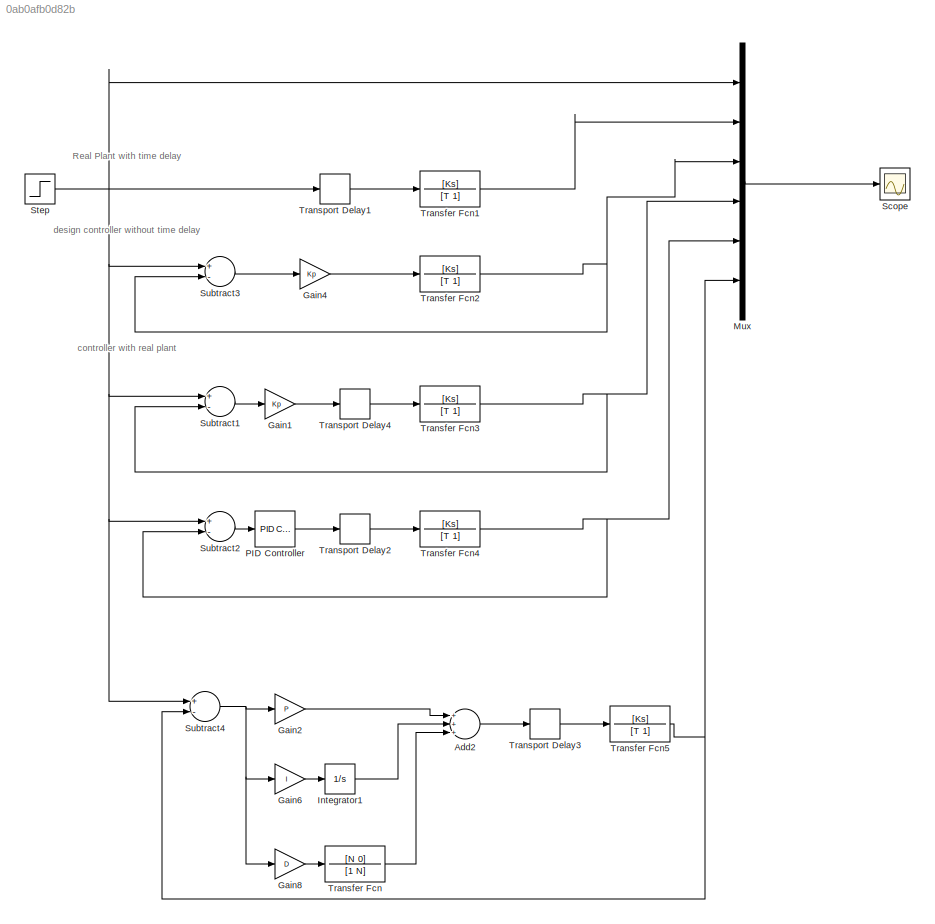
MODEL slx_0ab0afb0d82b
KIND model
CONFIG AbsTol = auto
CONFIG FixedStep = 0.001
CONFIG MaxStep = auto
CONFIG MinStep = auto
CONFIG PreLoadFcn = a=1;\nsim(Week_5_Time_delay.slx');\nif a==1\n  sim('PID_Kim.slx')\nend
CONFIG RelTol = 1e-3
CONFIG SampleTimeConstraint = Unconstrained
CONFIG Solver = FixedStepAuto
CONFIG SolverMode = Auto
CONFIG SolverName = FixedStepAuto
CONFIG StartTime = 0.0
CONFIG StopTime = 10.0
BLOCK [Sum] Add2
  InputSameDT = off
  Inputs = +++
  OutDataTypeStr = Inherit: Inherit via internal rule
  Ports = [3, 1]
  SaturateOnIntegerOverflow = off
BLOCK [Gain] Gain1
  Gain = Kp
  OutDataTypeStr = Inherit: Inherit via internal rule
  ParamDataTypeStr = Inherit: Inherit via internal rule
  SaturateOnIntegerOverflow = off
BLOCK [Gain] Gain2
  Gain = P
  OutDataTypeStr = Inherit: Inherit via internal rule
  ParamDataTypeStr = Inherit: Inherit via internal rule
  SaturateOnIntegerOverflow = off
BLOCK [Gain] Gain4
  Gain = Kp
  OutDataTypeStr = Inherit: Inherit via internal rule
  ParamDataTypeStr = Inherit: Inherit via internal rule
  SaturateOnIntegerOverflow = off
BLOCK [Gain] Gain6
  Gain = I
  OutDataTypeStr = Inherit: Inherit via internal rule
  ParamDataTypeStr = Inherit: Inherit via internal rule
  SaturateOnIntegerOverflow = off
BLOCK [Gain] Gain8
  Gain = D
  OutDataTypeStr = Inherit: Inherit via internal rule
  ParamDataTypeStr = Inherit: Inherit via internal rule
  SaturateOnIntegerOverflow = off
BLOCK [Integrator] Integrator1
  Ports = [1, 1]
BLOCK [Mux] Mux
  DisplayOption = bar
  Inputs = 6
  Ports = [6, 1]
BLOCK [Reference] PID Controller  REF=simulink/Continuous/PID Controller
  Ports = [1, 1]
  SourceBlock = simulink/Continuous/PID Controller
  SourceType = PID 1dof
BLOCK [Scope] Scope
  Ports = [1]
  ScopeSpecificationString = Simulink.scopes.TimeScopeBlockCfg('CurrentConfiguration', extmgr.ConfigurationSet(extmgr.Configuration('Core','General UI',true),extmgr.Configuration('Core','Source UI',true),extmgr.Configuration('Sources','WiredSimulink',true,'DataLoggingLimitDataPoints',true,'DataLoggingMaxPoints','50000'),extmgr.Configuration('Visuals','Time Domain',true,'SerializedDisplays',{struct('MinYLimReal','-0.00325','Ma...<+1549ch>
BLOCK [Step] Step
  SampleTime = 0
BLOCK [Sum] Subtract1
  InputSameDT = off
  Inputs = +-
  OutDataTypeStr = Inherit: Inherit via internal rule
  Ports = [2, 1]
  SaturateOnIntegerOverflow = off
BLOCK [Sum] Subtract2
  InputSameDT = off
  Inputs = +-
  OutDataTypeStr = Inherit: Inherit via internal rule
  Ports = [2, 1]
  SaturateOnIntegerOverflow = off
BLOCK [Sum] Subtract3
  InputSameDT = off
  Inputs = +-
  OutDataTypeStr = Inherit: Inherit via internal rule
  Ports = [2, 1]
  SaturateOnIntegerOverflow = off
BLOCK [Sum] Subtract4
  InputSameDT = off
  Inputs = +-
  OutDataTypeStr = Inherit: Inherit via internal rule
  Ports = [2, 1]
  SaturateOnIntegerOverflow = off
BLOCK [TransferFcn] Transfer Fcn
  Denominator = [1 N]
  Numerator = [N  0]
BLOCK [TransferFcn] Transfer Fcn1
  Denominator = [T 1]
  Numerator = [Ks]
BLOCK [TransferFcn] Transfer Fcn2
  Denominator = [T 1]
  Numerator = [Ks]
BLOCK [TransferFcn] Transfer Fcn3
  Denominator = [T 1]
  Numerator = [Ks]
BLOCK [TransferFcn] Transfer Fcn4
  Denominator = [T 1]
  Numerator = [Ks]
BLOCK [TransferFcn] Transfer Fcn5
  Denominator = [T 1]
  Numerator = [Ks]
BLOCK [TransportDelay] Transport Delay1
  DelayTime = L
  Ports = [1, 1]
BLOCK [TransportDelay] Transport Delay2
  DelayTime = L
  Ports = [1, 1]
BLOCK [TransportDelay] Transport Delay3
  DelayTime = L
  Ports = [1, 1]
BLOCK [TransportDelay] Transport Delay4
  DelayTime = L
  Ports = [1, 1]
ANNOTATION (root): controller with real plant
ANNOTATION (root): design controller without time delay
ANNOTATION (root): Real Plant with time delay
LINE Add2:1 -> Transport Delay3:1
LINE Gain1:1 -> Transport Delay4:1
LINE Gain2:1 -> Add2:1
LINE Gain4:1 -> Transfer Fcn2:1
LINE Gain6:1 -> Integrator1:1
LINE Gain8:1 -> Transfer Fcn:1
LINE Integrator1:1 -> Add2:2
LINE Mux:1 -> Scope:1
LINE PID Controller:1 -> Transport Delay2:1
NET Step:1 -> Mux:1, Subtract1:1, Subtract2:1, Subtract3:1, Subtract4:1, Transport Delay1:1
LINE Subtract1:1 -> Gain1:1
LINE Subtract2:1 -> PID Controller:1
LINE Subtract3:1 -> Gain4:1
NET Subtract4:1 -> Gain2:1, Gain6:1, Gain8:1
LINE Transfer Fcn1:1 -> Mux:2
NET Transfer Fcn2:1 -> Mux:3, Subtract3:2
NET Transfer Fcn3:1 -> Mux:4, Subtract1:2
NET Transfer Fcn4:1 -> Mux:5, Subtract2:2
NET Transfer Fcn5:1 -> Mux:6, Subtract4:2
LINE Transfer Fcn:1 -> Add2:3
LINE Transport Delay1:1 -> Transfer Fcn1:1
LINE Transport Delay2:1 -> Transfer Fcn4:1
LINE Transport Delay3:1 -> Transfer Fcn5:1
LINE Transport Delay4:1 -> Transfer Fcn3:1
note: NET lines group one-source signal fan-out (src -> all destinations, sorted); 1:1 wires keep LINE
